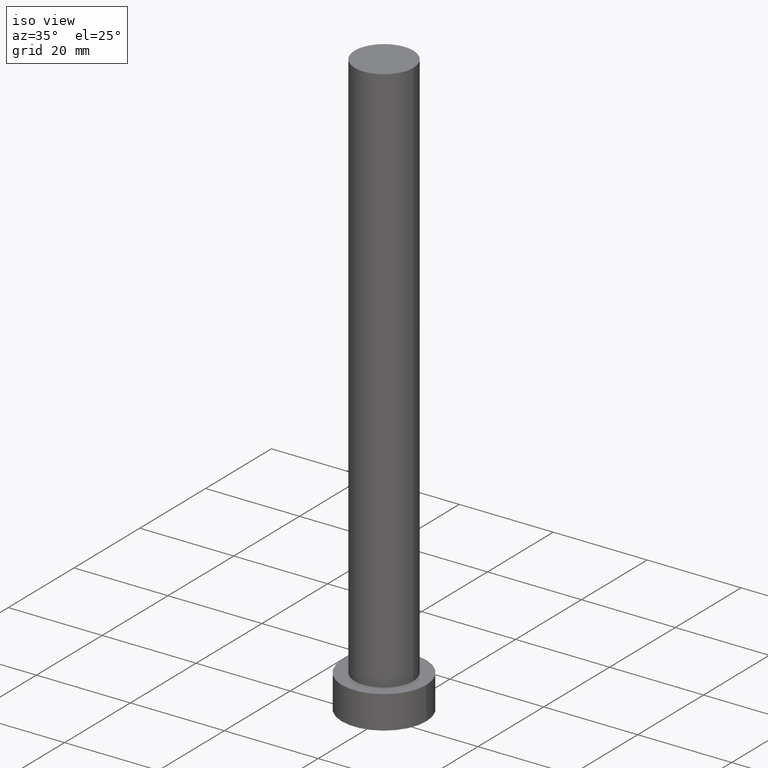
[diagram: clean part render]
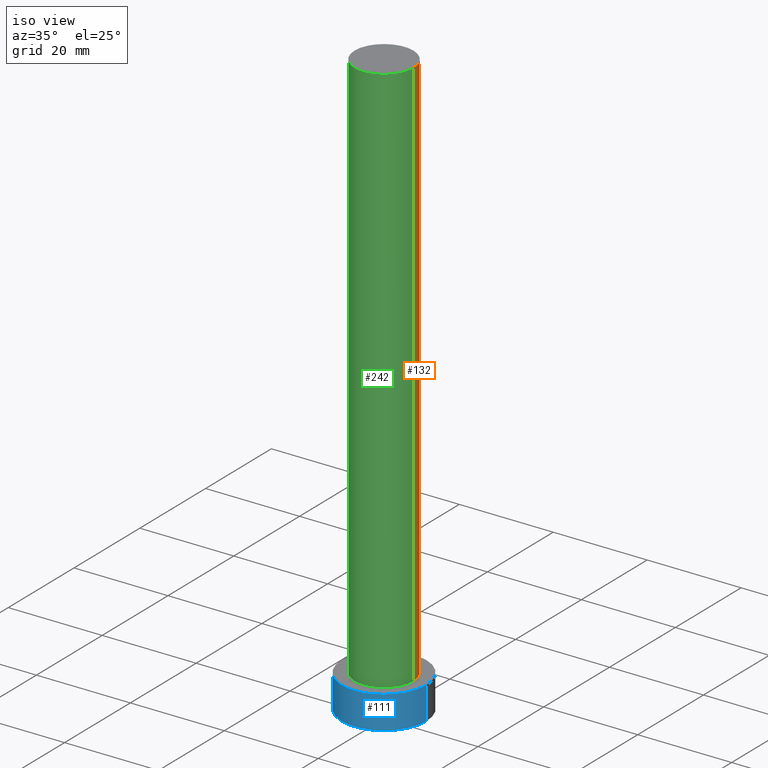
[diagram: same view with three faces highlighted in distinct colors, each labeled with its STEP entity id]
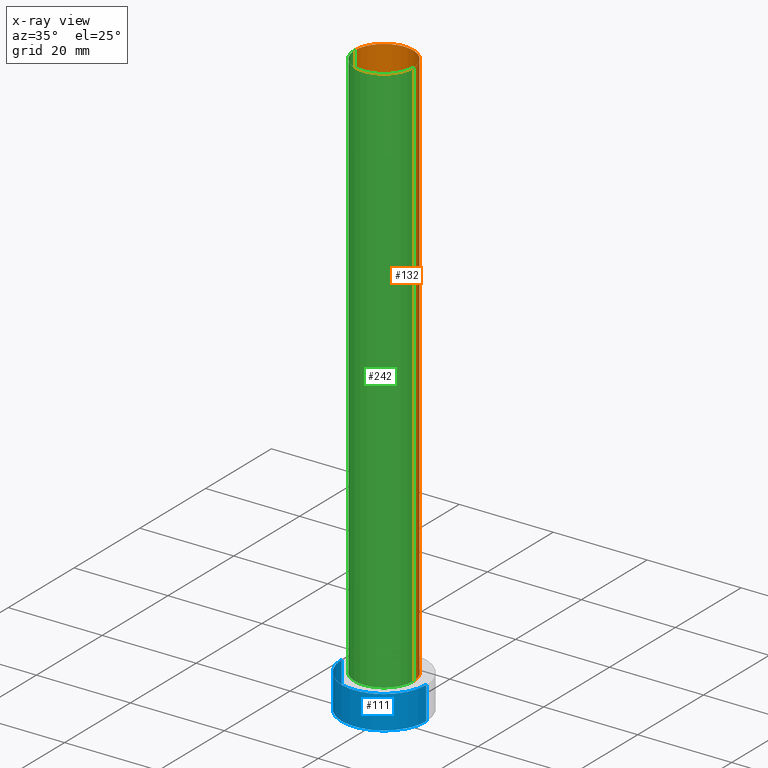
[diagram: x-ray of the same camera — body ghosted, the three highlighted faces saturated]
A machine part, iso view with three faces highlighted in distinct colors.
The next image is the same camera in x-ray (body ghosted, the three faces saturated) — at least one of them is partly hidden behind the body in this view.
Their STEP definitions:

[orange] entity #132 — the highlighted cylindrical surface (edge-blend (fillet) strip) has radius 6.25 mm, axis along (-0, -0, -1).
#2 = CARTESIAN_POINT ( 'NONE',  ( 6.250000000000000000, 7.654042494670957606E-16, 7.000000000000000000 ) ) ;
#8 = ORIENTED_EDGE ( 'NONE', *, *, #139, .F. ) ;
#22 = LINE ( 'NONE', #244, #224 ) ;
#24 = DIRECTION ( 'NONE',  ( -0.000000000000000000, -0.000000000000000000, -1.000000000000000000 ) ) ;
#26 = CIRCLE ( 'NONE', #211, 6.250000000000000000 ) ;
#35 = VERTEX_POINT ( 'NONE', #114 ) ;
#40 = DIRECTION ( 'NONE',  ( 0.000000000000000000, 0.000000000000000000, 1.000000000000000000 ) ) ;
#60 = FACE_OUTER_BOUND ( 'NONE', #190, .T. ) ;
#63 = AXIS2_PLACEMENT_3D ( 'NONE', #174, #254, #138 ) ;
#72 = CARTESIAN_POINT ( 'NONE',  ( 0.000000000000000000, 0.000000000000000000, 125.0000000000000000 ) ) ;
#82 = EDGE_CURVE ( 'NONE', #176, #35, #215, .T. ) ;
#88 = VERTEX_POINT ( 'NONE', #2 ) ;
#103 = DIRECTION ( 'NONE',  ( 1.000000000000000000, 0.000000000000000000, 0.000000000000000000 ) ) ;
#112 = CARTESIAN_POINT ( 'NONE',  ( -6.250000000000000000, 0.000000000000000000, 125.0000000000000000 ) ) ;
#114 = CARTESIAN_POINT ( 'NONE',  ( -6.250000000000000000, 0.000000000000000000, 7.000000000000000000 ) ) ;
#115 = VERTEX_POINT ( 'NONE', #116 ) ;
#116 = CARTESIAN_POINT ( 'NONE',  ( 6.250000000000000000, 7.654042494670957606E-16, 125.0000000000000000 ) ) ;
#120 = CARTESIAN_POINT ( 'NONE',  ( -6.250000000000000000, 0.000000000000000000, 125.0000000000000000 ) ) ;
#123 = CARTESIAN_POINT ( 'NONE',  ( 0.000000000000000000, 0.000000000000000000, 7.000000000000000000 ) ) ;
#132 = ADVANCED_FACE ( 'NONE', ( #60 ), #137, .T. ) ;
#137 = CYLINDRICAL_SURFACE ( 'NONE', #63, 6.250000000000000000 ) ;
#138 = DIRECTION ( 'NONE',  ( -1.000000000000000000, 0.000000000000000000, 0.000000000000000000 ) ) ;
#139 = EDGE_CURVE ( 'NONE', #115, #176, #26, .T. ) ;
#158 = ORIENTED_EDGE ( 'NONE', *, *, #82, .F. ) ;
#174 = CARTESIAN_POINT ( 'NONE',  ( 0.000000000000000000, 0.000000000000000000, 125.0000000000000000 ) ) ;
#176 = VERTEX_POINT ( 'NONE', #120 ) ;
#182 = EDGE_CURVE ( 'NONE', #88, #35, #250, .T. ) ;
#190 = EDGE_LOOP ( 'NONE', ( #8, #210, #239, #158 ) ) ;
#193 = EDGE_CURVE ( 'NONE', #115, #88, #22, .T. ) ;
#194 = DIRECTION ( 'NONE',  ( -0.000000000000000000, -0.000000000000000000, -1.000000000000000000 ) ) ;
#200 = DIRECTION ( 'NONE',  ( 1.000000000000000000, 0.000000000000000000, 0.000000000000000000 ) ) ;
#210 = ORIENTED_EDGE ( 'NONE', *, *, #193, .T. ) ;
#211 = AXIS2_PLACEMENT_3D ( 'NONE', #72, #221, #200 ) ;
#215 = LINE ( 'NONE', #112, #229 ) ;
#221 = DIRECTION ( 'NONE',  ( 0.000000000000000000, 0.000000000000000000, 1.000000000000000000 ) ) ;
#224 = VECTOR ( 'NONE', #24, 1000.000000000000000 ) ;
#229 = VECTOR ( 'NONE', #194, 1000.000000000000000 ) ;
#235 = AXIS2_PLACEMENT_3D ( 'NONE', #123, #40, #103 ) ;
#239 = ORIENTED_EDGE ( 'NONE', *, *, #182, .T. ) ;
#244 = CARTESIAN_POINT ( 'NONE',  ( 6.250000000000000000, 7.654042494670957606E-16, 125.0000000000000000 ) ) ;
#250 = CIRCLE ( 'NONE', #235, 6.250000000000000000 ) ;
#254 = DIRECTION ( 'NONE',  ( -0.000000000000000000, -0.000000000000000000, -1.000000000000000000 ) ) ;

[blue] entity #111 — the highlighted cylindrical surface (partial cylindrical patch) has radius 9 mm, axis along (-0, -0, -1).
#3 = EDGE_CURVE ( 'NONE', #216, #110, #205, .T. ) ;
#6 = CARTESIAN_POINT ( 'NONE',  ( -9.000000000000000000, 0.000000000000000000, 7.000000000000000000 ) ) ;
#14 = ORIENTED_EDGE ( 'NONE', *, *, #251, .T. ) ;
#17 = AXIS2_PLACEMENT_3D ( 'NONE', #153, #74, #98 ) ;
#29 = EDGE_CURVE ( 'NONE', #172, #48, #218, .T. ) ;
#30 = CARTESIAN_POINT ( 'NONE',  ( 0.000000000000000000, 0.000000000000000000, 7.000000000000000000 ) ) ;
#32 = DIRECTION ( 'NONE',  ( 1.000000000000000000, 0.000000000000000000, 0.000000000000000000 ) ) ;
#44 = DIRECTION ( 'NONE',  ( -0.000000000000000000, -0.000000000000000000, -1.000000000000000000 ) ) ;
#48 = VERTEX_POINT ( 'NONE', #178 ) ;
#57 = AXIS2_PLACEMENT_3D ( 'NONE', #58, #240, #236 ) ;
#58 = CARTESIAN_POINT ( 'NONE',  ( 0.000000000000000000, 0.000000000000000000, 7.000000000000000000 ) ) ;
#74 = DIRECTION ( 'NONE',  ( 0.000000000000000000, 0.000000000000000000, 1.000000000000000000 ) ) ;
#76 = FACE_OUTER_BOUND ( 'NONE', #113, .T. ) ;
#98 = DIRECTION ( 'NONE',  ( 1.000000000000000000, 0.000000000000000000, 0.000000000000000000 ) ) ;
#104 = CARTESIAN_POINT ( 'NONE',  ( -9.000000000000000000, 0.000000000000000000, 0.000000000000000000 ) ) ;
#108 = VECTOR ( 'NONE', #44, 1000.000000000000000 ) ;
#110 = VERTEX_POINT ( 'NONE', #156 ) ;
#111 = ADVANCED_FACE ( 'NONE', ( #76 ), #217, .T. ) ;
#113 = EDGE_LOOP ( 'NONE', ( #220, #209, #14, #212 ) ) ;
#140 = LINE ( 'NONE', #184, #108 ) ;
#153 = CARTESIAN_POINT ( 'NONE',  ( 0.000000000000000000, 0.000000000000000000, 0.000000000000000000 ) ) ;
#156 = CARTESIAN_POINT ( 'NONE',  ( 9.000000000000000000, 1.102182119232617714E-15, 0.000000000000000000 ) ) ;
#162 = CARTESIAN_POINT ( 'NONE',  ( -9.000000000000000000, 0.000000000000000000, 7.000000000000000000 ) ) ;
#163 = AXIS2_PLACEMENT_3D ( 'NONE', #30, #196, #32 ) ;
#166 = DIRECTION ( 'NONE',  ( -0.000000000000000000, -0.000000000000000000, -1.000000000000000000 ) ) ;
#170 = VECTOR ( 'NONE', #166, 1000.000000000000000 ) ;
#172 = VERTEX_POINT ( 'NONE', #162 ) ;
#178 = CARTESIAN_POINT ( 'NONE',  ( 9.000000000000000000, 1.102182119232617714E-15, 7.000000000000000000 ) ) ;
#184 = CARTESIAN_POINT ( 'NONE',  ( 9.000000000000000000, 1.102182119232617714E-15, 7.000000000000000000 ) ) ;
#196 = DIRECTION ( 'NONE',  ( 0.000000000000000000, 0.000000000000000000, 1.000000000000000000 ) ) ;
#205 = CIRCLE ( 'NONE', #17, 9.000000000000000000 ) ;
#208 = EDGE_CURVE ( 'NONE', #48, #110, #140, .T. ) ;
#209 = ORIENTED_EDGE ( 'NONE', *, *, #29, .F. ) ;
#212 = ORIENTED_EDGE ( 'NONE', *, *, #3, .T. ) ;
#216 = VERTEX_POINT ( 'NONE', #104 ) ;
#217 = CYLINDRICAL_SURFACE ( 'NONE', #57, 9.000000000000000000 ) ;
#218 = CIRCLE ( 'NONE', #163, 9.000000000000000000 ) ;
#220 = ORIENTED_EDGE ( 'NONE', *, *, #208, .F. ) ;
#236 = DIRECTION ( 'NONE',  ( -1.000000000000000000, 0.000000000000000000, 0.000000000000000000 ) ) ;
#240 = DIRECTION ( 'NONE',  ( -0.000000000000000000, -0.000000000000000000, -1.000000000000000000 ) ) ;
#241 = LINE ( 'NONE', #6, #170 ) ;
#251 = EDGE_CURVE ( 'NONE', #172, #216, #241, .T. ) ;

[green] entity #242 — the highlighted cylindrical surface (edge-blend (fillet) strip) has radius 6.25 mm, axis along (-0, -0, -1).
#2 = CARTESIAN_POINT ( 'NONE',  ( 6.250000000000000000, 7.654042494670957606E-16, 7.000000000000000000 ) ) ;
#15 = ORIENTED_EDGE ( 'NONE', *, *, #197, .T. ) ;
#18 = AXIS2_PLACEMENT_3D ( 'NONE', #206, #222, #106 ) ;
#20 = DIRECTION ( 'NONE',  ( -1.000000000000000000, 0.000000000000000000, 0.000000000000000000 ) ) ;
#22 = LINE ( 'NONE', #244, #224 ) ;
#24 = DIRECTION ( 'NONE',  ( -0.000000000000000000, -0.000000000000000000, -1.000000000000000000 ) ) ;
#35 = VERTEX_POINT ( 'NONE', #114 ) ;
#38 = FACE_OUTER_BOUND ( 'NONE', #233, .T. ) ;
#49 = AXIS2_PLACEMENT_3D ( 'NONE', #102, #124, #20 ) ;
#66 = CIRCLE ( 'NONE', #159, 6.250000000000000000 ) ;
#82 = EDGE_CURVE ( 'NONE', #176, #35, #215, .T. ) ;
#88 = VERTEX_POINT ( 'NONE', #2 ) ;
#102 = CARTESIAN_POINT ( 'NONE',  ( 0.000000000000000000, 0.000000000000000000, 125.0000000000000000 ) ) ;
#106 = DIRECTION ( 'NONE',  ( 1.000000000000000000, 0.000000000000000000, 0.000000000000000000 ) ) ;
#112 = CARTESIAN_POINT ( 'NONE',  ( -6.250000000000000000, 0.000000000000000000, 125.0000000000000000 ) ) ;
#114 = CARTESIAN_POINT ( 'NONE',  ( -6.250000000000000000, 0.000000000000000000, 7.000000000000000000 ) ) ;
#115 = VERTEX_POINT ( 'NONE', #116 ) ;
#116 = CARTESIAN_POINT ( 'NONE',  ( 6.250000000000000000, 7.654042494670957606E-16, 125.0000000000000000 ) ) ;
#120 = CARTESIAN_POINT ( 'NONE',  ( -6.250000000000000000, 0.000000000000000000, 125.0000000000000000 ) ) ;
#124 = DIRECTION ( 'NONE',  ( -0.000000000000000000, -0.000000000000000000, -1.000000000000000000 ) ) ;
#141 = CIRCLE ( 'NONE', #18, 6.250000000000000000 ) ;
#143 = DIRECTION ( 'NONE',  ( 0.000000000000000000, 0.000000000000000000, 1.000000000000000000 ) ) ;
#145 = DIRECTION ( 'NONE',  ( 1.000000000000000000, 0.000000000000000000, 0.000000000000000000 ) ) ;
#159 = AXIS2_PLACEMENT_3D ( 'NONE', #164, #143, #145 ) ;
#164 = CARTESIAN_POINT ( 'NONE',  ( 0.000000000000000000, 0.000000000000000000, 7.000000000000000000 ) ) ;
#176 = VERTEX_POINT ( 'NONE', #120 ) ;
#177 = ORIENTED_EDGE ( 'NONE', *, *, #193, .F. ) ;
#180 = CYLINDRICAL_SURFACE ( 'NONE', #49, 6.250000000000000000 ) ;
#189 = ORIENTED_EDGE ( 'NONE', *, *, #82, .T. ) ;
#193 = EDGE_CURVE ( 'NONE', #115, #88, #22, .T. ) ;
#194 = DIRECTION ( 'NONE',  ( -0.000000000000000000, -0.000000000000000000, -1.000000000000000000 ) ) ;
#197 = EDGE_CURVE ( 'NONE', #35, #88, #66, .T. ) ;
#206 = CARTESIAN_POINT ( 'NONE',  ( 0.000000000000000000, 0.000000000000000000, 125.0000000000000000 ) ) ;
#215 = LINE ( 'NONE', #112, #229 ) ;
#222 = DIRECTION ( 'NONE',  ( 0.000000000000000000, 0.000000000000000000, 1.000000000000000000 ) ) ;
#224 = VECTOR ( 'NONE', #24, 1000.000000000000000 ) ;
#228 = EDGE_CURVE ( 'NONE', #176, #115, #141, .T. ) ;
#229 = VECTOR ( 'NONE', #194, 1000.000000000000000 ) ;
#233 = EDGE_LOOP ( 'NONE', ( #177, #249, #189, #15 ) ) ;
#242 = ADVANCED_FACE ( 'NONE', ( #38 ), #180, .T. ) ;
#244 = CARTESIAN_POINT ( 'NONE',  ( 6.250000000000000000, 7.654042494670957606E-16, 125.0000000000000000 ) ) ;
#249 = ORIENTED_EDGE ( 'NONE', *, *, #228, .F. ) ;